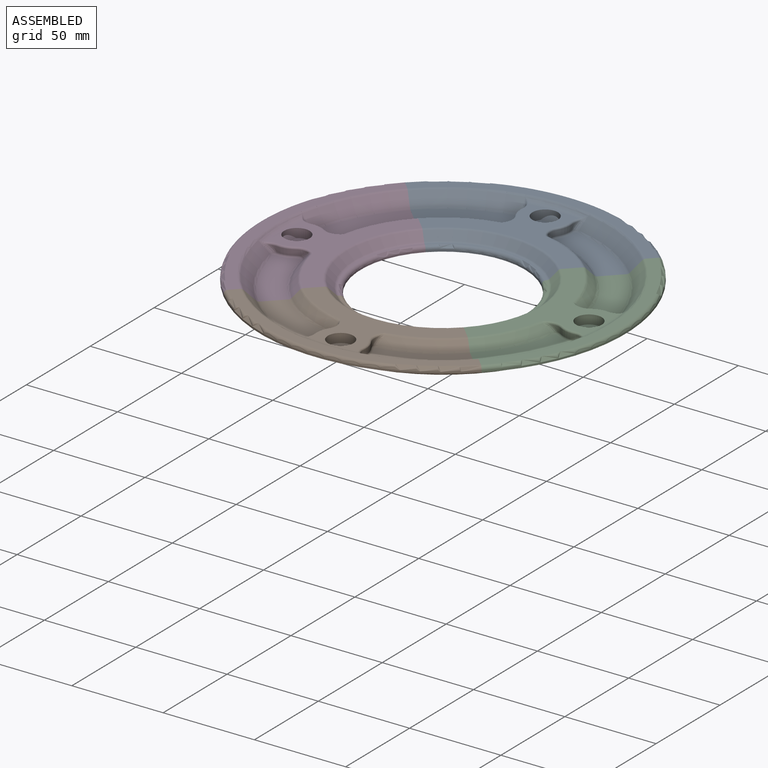
[diagram: assembled view]
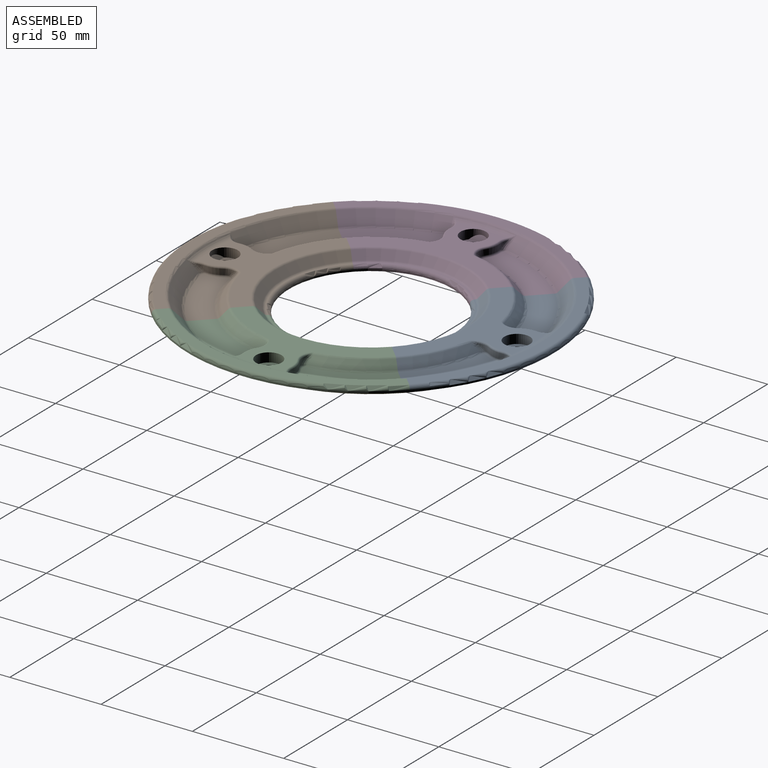
[diagram: assembled view, second angle]
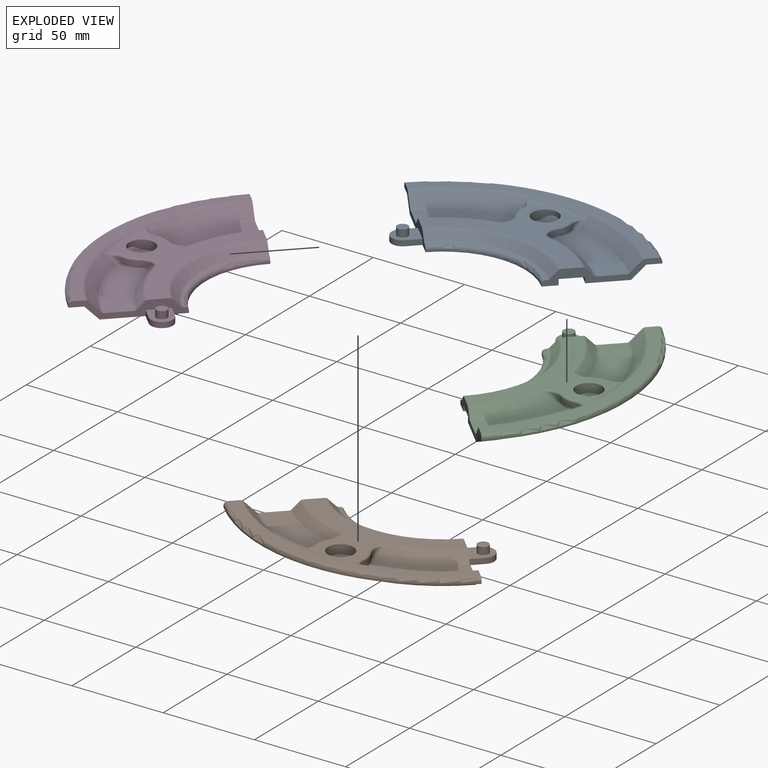
[diagram: exploded view]
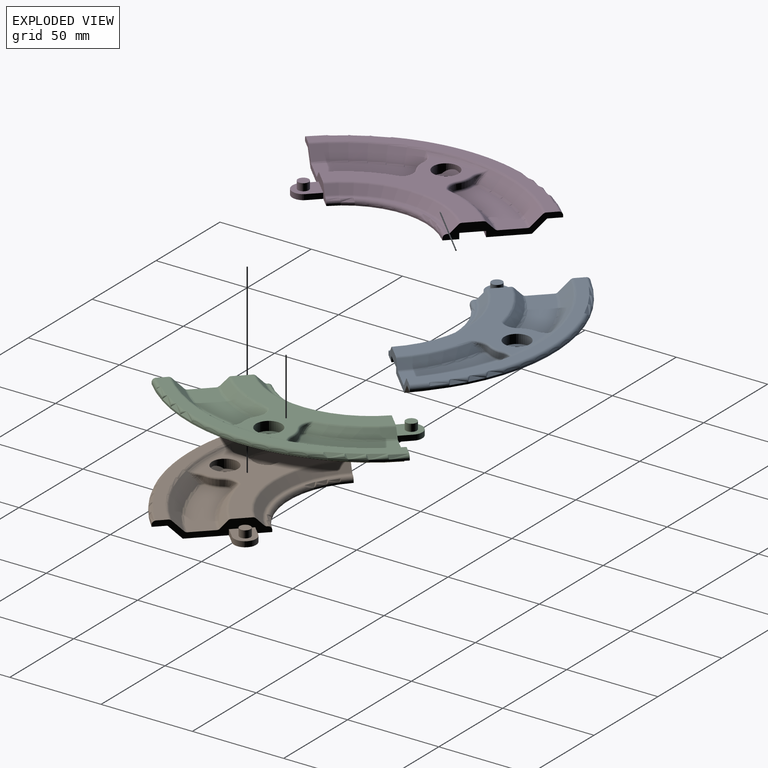
[diagram: exploded view, second angle]
ASSEMBLY  parts=4 mates=7
PART A: 89 faces, bbox 78.3x153.1x10.4 mm
  f0: cone r=91.5mm half-angle=45deg, axis (0,0,1), area 432.3mm2, adj f1,f84,f85,f86,f87,f88
  f1: plane 38.89x38.89mm, normal (0.71,-0.71,0), area 218.2mm2, adj f0,f2,f4,f60,f61,f62,f63,f64
  f2: plane 5.66x5.66mm, normal (-0.71,-0.71,0), area 24mm2, adj f1,f3,f79,f81
  f3: cylinder r=6mm len=10.24mm, axis (0,0,-1), area 56.5mm2, adj f2,f79,f80,f81
  f4: cone r=85.74mm half-angle=45deg, axis (0,0,1), area 1387.7mm2, adj f1,f5,f60,f79
  f5: plane 38.89x38.89mm, normal (0.71,0.71,0), area 216.4mm2, adj f4,f6,f8,f51,f52,f53,f54,f55
  f6: plane 5.66x5.66mm, normal (-0.71,0.71,0), area 24.8mm2, adj f5,f7,f57,f79
  f7: cylinder r=6.1mm len=10.41mm, axis (0,0,-1), area 59.4mm2, adj f6,f56,f57,f79
  f8: torus R=63.67mm, axis (0,0,1), area 59.5mm2, adj f5,f9,f51,f68
  f9: bspline ~2.26x1.21mm, area 0.6mm2, adj f8,f10,f50
  f10: bspline ~3.74x2.65mm, area 4.3mm2, adj f9,f11,f50,f51
  f11: bspline ~6.22x5.45mm, area 11.3mm2, adj f10,f12,f48,f49,f51
  f12: bspline ~2.48x1.2mm, area 2mm2, adj f11,f13,f49,f53
  f13: torus R=6.5mm, axis (0,0,1), area 3.4mm2, adj f12,f14,f48,f53
  f14: torus R=14.71mm, axis (0,0,1), area 13.9mm2, adj f13,f15,f47,f53
  f15: bspline ~2.02x1.33mm, area 1.5mm2, adj f14,f16,f46,f53
  f16: bspline ~1.32x1.3mm, area 0.7mm2, adj f15,f17,f18,f53
  f17: bspline ~1.75x1.64mm, area 0.5mm2, adj f16,f18,f54
  f18: bspline ~5.35x5.02mm, area 12.2mm2, adj f16,f17,f19,f45,f46,f55
  f19: bspline ~2.67x2.57mm, area 2.6mm2, adj f18,f20,f43,f55
  f20: bspline ~4.09x3.63mm, area 4.7mm2, adj f19,f21,f22,f55
  f21: bspline ~0.07x0.06mm, area 0mm2, adj f20,f22,f88
  f22: bspline ~5.48x4.52mm, area 3.2mm2, adj f20,f21,f23,f43
  f23: torus R=87.43mm, axis (0,0,-1), area 121.5mm2, adj f22,f24,f68,f88
  f24: bspline ~5.48x4.52mm, area 3.2mm2, adj f23,f25,f42,f87
  f25: torus R=8.5mm, axis (0,0,1), area 7.5mm2, adj f24,f26,f41,f68,f86
  f26: torus R=12.71mm, axis (0,0,1), area 13.8mm2, adj f25,f27,f40,f68
  f27: torus R=8.5mm, axis (0,0,1), area 14.8mm2, adj f26,f28,f38,f39,f68
  f28: cylinder r=7.5mm len=6.31mm, axis (0,0,-1), area 13.3mm2, adj f27,f29,f37,f40
  f29: torus R=6.5mm, axis (0,0,1), area 3.4mm2, adj f28,f30,f32,f64
  f30: bspline ~2.48x1.2mm, area 2mm2, adj f29,f31,f37,f64
  f31: bspline ~1.92x1.45mm, area 0.6mm2, adj f30,f37,f65
  f32: torus R=14.71mm, axis (0,0,1), area 13.9mm2, adj f29,f33,f40,f64
  f33: bspline ~2.02x1.33mm, area 1.5mm2, adj f32,f34,f35,f64
  f34: bspline ~5.83x5.68mm, area 0.3mm2, adj f33,f40,f85
  f35: bspline ~1.44x1.4mm, area 0.7mm2, adj f33,f36,f64,f85
  f36: bspline ~1.75x1.64mm, area 0.5mm2, adj f35,f84,f85
  f37: bspline ~5.66x5.01mm, area 11.3mm2, adj f28,f30,f31,f39,f66
  f38: bspline ~2.26x1.21mm, area 0.6mm2, adj f27,f39,f67
  f39: bspline ~3.74x2.65mm, area 4.3mm2, adj f27,f37,f38,f66
  f40: cylinder r=13.71mm len=8.61mm, axis (0,0,-1), area 26.9mm2, adj f26,f28,f32,f34,f41
  f41: cylinder r=7.5mm len=3.5mm, axis (0,0,-1), area 4.6mm2, adj f25,f40,f85
  f42: bspline ~0.07x0.06mm, area 0mm2, adj f24,f87,f88
  f43: torus R=8.5mm, axis (0,0,1), area 7.5mm2, adj f19,f22,f44,f45,f68
  f44: torus R=12.71mm, axis (0,0,1), area 13.8mm2, adj f43,f47,f50,f68
  f45: cylinder r=7.5mm len=3.5mm, axis (0,0,-1), area 4.6mm2, adj f18,f43,f47
  f46: bspline ~5.83x5.68mm, area 0.3mm2, adj f15,f18,f47
  f47: cylinder r=13.71mm len=8.61mm, axis (0,0,-1), area 26.9mm2, adj f14,f44,f45,f46,f48
  f48: cylinder r=7.5mm len=6.31mm, axis (0,0,-1), area 13.3mm2, adj f11,f13,f47,f50
  f49: bspline ~1.92x1.45mm, area 0.6mm2, adj f11,f12,f52
  f50: torus R=8.5mm, axis (0,0,1), area 14.8mm2, adj f9,f10,f44,f48,f68
  f51: cone r=69.5mm half-angle=45deg, axis (0,0,-1), area 216.3mm2, adj f5,f8,f10,f11,f52
  f52: torus R=70.33mm, axis (0,0,1), area 66.8mm2, adj f5,f49,f51,f53
  f53: plane 47.48x32.59mm, normal (0,0,1), area 623.7mm2, adj f5,f12,f13,f14,f15,f16,f52,f54
  f54: torus R=83.67mm, axis (0,0,1), area 79.8mm2, adj f5,f17,f53,f55
  f55: cone r=91.5mm half-angle=45deg, axis (0,0,1), area 432.3mm2, adj f5,f18,f19,f20,f54,f88
  f56: plane 5.66x5.66mm, normal (0.71,-0.71,0), area 24.8mm2, adj f5,f7,f57,f79
  f57: plane 16.07x16.07mm, normal (0,0,-1), area 125.9mm2, adj f5,f6,f7,f56,f58
  f58: cylinder r=3.1mm len=6.2mm, axis (0,0,-1), area 85.7mm2, adj f57,f59
  f59: plane 6.2x6.2mm, normal (0,0,-1), area 30.2mm2, adj f58
  f60: plane 141.42x34.42mm, normal (0,0,-1), area 1098.6mm2, adj f1,f4,f5,f61
  f61: cylinder r=100mm len=141.42mm, axis (0,0,-1), area 157.1mm2, adj f1,f5,f60,f62
  f62: torus R=98mm, axis (0,0,1), area 489.9mm2, adj f1,f5,f61,f63
  f63: plane 138.59x32.71mm, normal (0,0,1), area 847.8mm2, adj f1,f5,f62,f88
  f64: plane 47.48x32.59mm, normal (0,0,1), area 623.7mm2, adj f1,f29,f30,f32,f33,f35,f65,f84
  f65: torus R=70.33mm, axis (0,0,1), area 66.8mm2, adj f1,f31,f64,f66
  f66: cone r=69.5mm half-angle=45deg, axis (0,0,-1), area 216.3mm2, adj f1,f37,f39,f65,f67
  f67: torus R=63.67mm, axis (0,0,1), area 59.5mm2, adj f1,f38,f66,f68
  f68: plane 90.05x49.32mm, normal (0,0,1), area 1296.2mm2, adj f1,f5,f8,f23,f25,f26,f27,f43
  f69: cylinder r=7mm len=14mm, axis (0,0,-1), area 219.9mm2, adj f68,f70,f72
  f70: plane 14x11.5mm, normal (0,0,1), area 84.4mm2, adj f69,f71,f72
  f71: cylinder r=4mm len=8mm, axis (0,0,-1), area 75.4mm2, adj f70,f79
  f72: cone r=91.5mm half-angle=45deg, axis (0,0,1), area 0mm2, adj f69,f70
  f73: torus R=53.89mm, axis (0,0,1), area 131.1mm2, adj f1,f5,f68,f74
  f74: cone r=53.06mm half-angle=45deg, axis (0,0,1), area 430mm2, adj f1,f5,f73,f75
  f75: torus R=47.23mm, axis (0,0,1), area 118.4mm2, adj f1,f5,f74,f76
  f76: plane 66.8x14mm, normal (0,0,1), area 17.3mm2, adj f1,f5,f75,f77
  f77: torus R=47mm, axis (0,0,1), area 225.7mm2, adj f1,f5,f76,f78
  f78: cylinder r=45mm len=63.64mm, axis (0,0,-1), area 70.7mm2, adj f1,f5,f77,f79
  f79: plane 121.26x55.84mm, normal (0,0,-1), area 4129.9mm2, adj f1,f2,f3,f4,f5,f6,f7,f56
  f80: plane 5.66x5.66mm, normal (0.71,0.71,0), area 24mm2, adj f1,f3,f79,f81
  f81: plane 15.9x15.9mm, normal (0,0,1), area 124.3mm2, adj f1,f2,f3,f80,f82
  f82: cylinder r=3mm len=6mm, axis (0,0,-1), area 75.4mm2, adj f81,f83
  f83: plane 6x6mm, normal (0,0,1), area 28.3mm2, adj f82
  f84: torus R=83.67mm, axis (0,0,1), area 79.8mm2, adj f0,f1,f36,f64
  f85: bspline ~5.96x5.58mm, area 12.2mm2, adj f0,f34,f35,f36,f41,f86
  f86: bspline ~2.67x2.57mm, area 2.6mm2, adj f0,f25,f85,f87
  f87: bspline ~4.09x3.63mm, area 4.7mm2, adj f0,f24,f42,f86
  f88: torus R=92.33mm, axis (0,0,1), area 225.3mm2, adj f0,f1,f5,f21,f23,f42,f55,f63
PART B: same geometry as A
PART C: same geometry as A
PART D: same geometry as A
PLACE A rot(axis=(0,0,-1),90deg) t=(31.7,-54.94,-20.33)mm
PLACE B rot(axis=(0,0,1),90deg) t=(31.7,-54.94,-20.33)mm
PLACE C rot(axis=(0,0,1),180deg) t=(31.7,-54.94,-20.33)mm
PLACE D t=(31.7,-54.94,-20.33)mm
MATE cylindrical D.f3 <-> B.f7  axis (0,0,1) through (-4.21,-102.16,-17.33)mm
MATE planar A.f79 <-> C.f79  axis (0,0,-1) through (71.92,-3.41,-20.33)mm
MATE planar A.f1 <-> D.f5  axis (-0.71,-0.71,0) through (-13.32,-9.92,-12.33)mm
MATE cylindrical D.f7 <-> A.f3  axis (0,0,-1) through (-15.52,-19.03,-20.33)mm
MATE planar D.f79 <-> B.f79  axis (0,0,-1) through (-14.1,-100.75,-20.33)mm
MATE cylindrical A.f7 <-> C.f3  axis (0,0,-1) through (67.61,-7.72,-20.33)mm
MATE planar B.f79 <-> C.f79  axis (0,0,-1) through (34.8,-115.14,-20.33)mm
